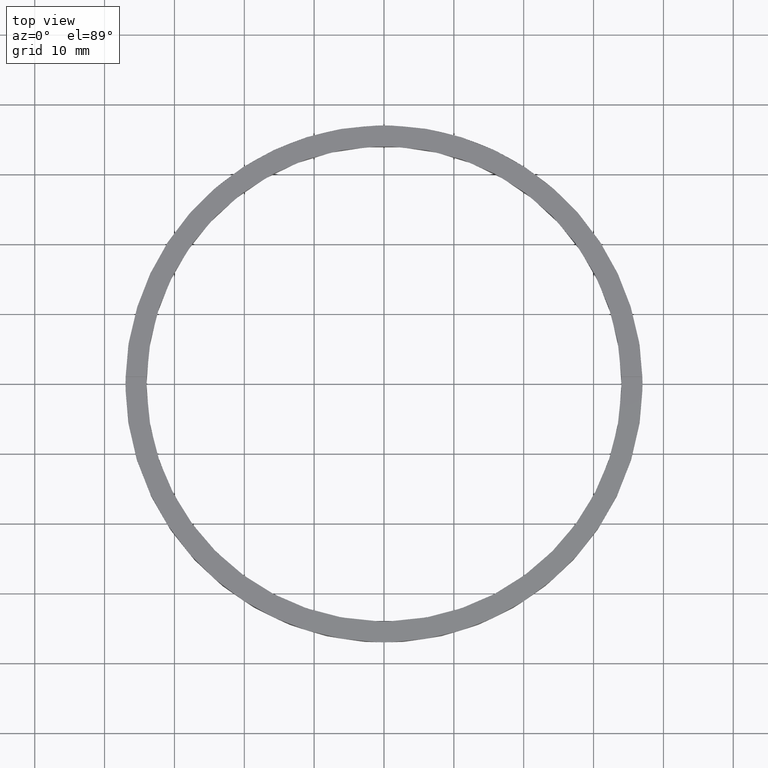
[diagram: clean part render]
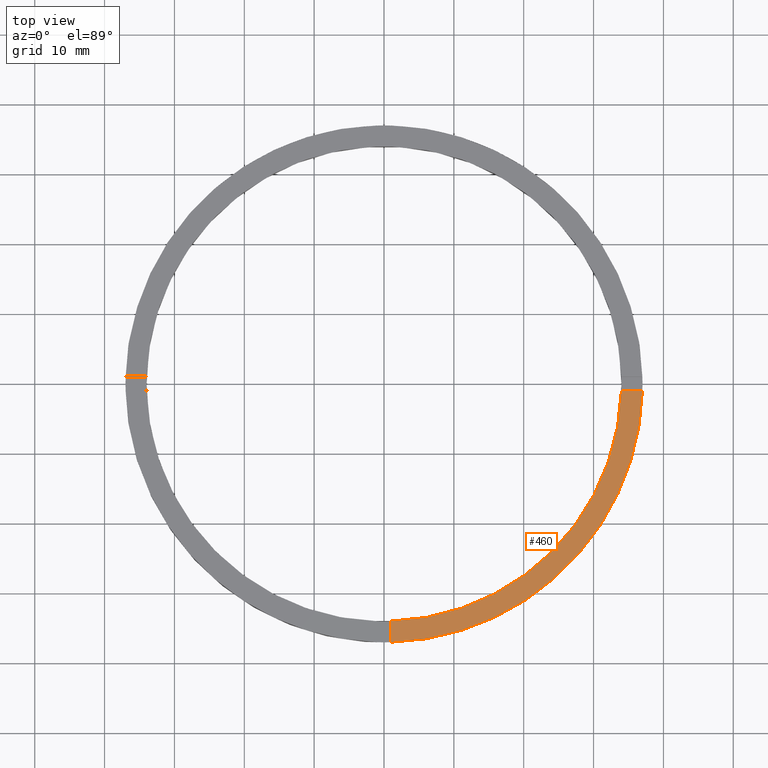
[diagram: same view with one face highlighted and labeled with its STEP entity id]
A machine part, top view. The second image highlights one B-rep face of the part: STEP entity #460.
In plain terms, the highlighted planar face has unit normal (0, 0, 1).
Its self-contained STEP definition (entity closure, byte-faithful):
#11 = DIRECTION ( 'NONE',  ( 1.000000000000000000, 0.000000000000000000, 0.000000000000000000 ) ) ;
#42 = CIRCLE ( 'NONE', #630, 34.00000000000000000 ) ;
#49 = FACE_OUTER_BOUND ( 'NONE', #209, .T. ) ;
#64 = EDGE_CURVE ( 'NONE', #665, #185, #157, .T. ) ;
#68 = AXIS2_PLACEMENT_3D ( 'NONE', #457, #711, #402 ) ;
#77 = AXIS2_PLACEMENT_3D ( 'NONE', #502, #78, #543 ) ;
#78 = DIRECTION ( 'NONE',  ( 0.000000000000000000, 0.000000000000000000, 1.000000000000000000 ) ) ;
#109 = EDGE_CURVE ( 'NONE', #258, #715, #668, .T. ) ;
#157 = LINE ( 'NONE', #288, #674 ) ;
#160 = VECTOR ( 'NONE', #239, 1000.000000000000000 ) ;
#172 = CARTESIAN_POINT ( 'NONE',  ( 33.98529093593285211, -1.000000000000157874, 3.500000000000000000 ) ) ;
#185 = VERTEX_POINT ( 'NONE', #438 ) ;
#186 = EDGE_CURVE ( 'NONE', #258, #185, #371, .T. ) ;
#209 = EDGE_LOOP ( 'NONE', ( #512, #687, #720, #413 ) ) ;
#239 = DIRECTION ( 'NONE',  ( -1.301042606982605074E-16, 1.000000000000000000, -0.000000000000000000 ) ) ;
#258 = VERTEX_POINT ( 'NONE', #363 ) ;
#259 = CARTESIAN_POINT ( 'NONE',  ( 0.9999999999998386846, -27.00000000000017764, 3.500000000000000000 ) ) ;
#288 = CARTESIAN_POINT ( 'NONE',  ( 26.99999999999998934, -1.000000000000158318, 3.500000000000000000 ) ) ;
#332 = PLANE ( 'NONE',  #68 ) ;
#346 = CARTESIAN_POINT ( 'NONE',  ( 0.9999999999998395728, -33.98529093593285921, 3.500000000000000000 ) ) ;
#358 = EDGE_CURVE ( 'NONE', #715, #665, #42, .T. ) ;
#363 = CARTESIAN_POINT ( 'NONE',  ( 0.9999999999998400169, -36.98648401781386497, 3.500000000000000000 ) ) ;
#371 = CIRCLE ( 'NONE', #77, 37.00000000000000000 ) ;
#373 = DIRECTION ( 'NONE',  ( 1.000000000000000000, 6.505213034913025371E-17, 0.000000000000000000 ) ) ;
#402 = DIRECTION ( 'NONE',  ( 1.000000000000000000, 0.000000000000000000, -0.000000000000000000 ) ) ;
#413 = ORIENTED_EDGE ( 'NONE', *, *, #186, .T. ) ;
#438 = CARTESIAN_POINT ( 'NONE',  ( 36.98648401781385076, -1.000000000000157652, 3.500000000000000000 ) ) ;
#457 = CARTESIAN_POINT ( 'NONE',  ( 0.000000000000000000, 0.000000000000000000, 3.500000000000000000 ) ) ;
#460 = ADVANCED_FACE ( 'NONE', ( #49 ), #332, .T. ) ;
#502 = CARTESIAN_POINT ( 'NONE',  ( 0.000000000000000000, 0.000000000000000000, 3.500000000000000000 ) ) ;
#512 = ORIENTED_EDGE ( 'NONE', *, *, #64, .F. ) ;
#543 = DIRECTION ( 'NONE',  ( 1.000000000000000000, 0.000000000000000000, 0.000000000000000000 ) ) ;
#630 = AXIS2_PLACEMENT_3D ( 'NONE', #669, #662, #11 ) ;
#662 = DIRECTION ( 'NONE',  ( 0.000000000000000000, 0.000000000000000000, 1.000000000000000000 ) ) ;
#665 = VERTEX_POINT ( 'NONE', #172 ) ;
#668 = LINE ( 'NONE', #259, #160 ) ;
#669 = CARTESIAN_POINT ( 'NONE',  ( 0.000000000000000000, 0.000000000000000000, 3.500000000000000000 ) ) ;
#674 = VECTOR ( 'NONE', #373, 1000.000000000000000 ) ;
#687 = ORIENTED_EDGE ( 'NONE', *, *, #358, .F. ) ;
#711 = DIRECTION ( 'NONE',  ( 0.000000000000000000, 0.000000000000000000, 1.000000000000000000 ) ) ;
#715 = VERTEX_POINT ( 'NONE', #346 ) ;
#720 = ORIENTED_EDGE ( 'NONE', *, *, #109, .F. ) ;